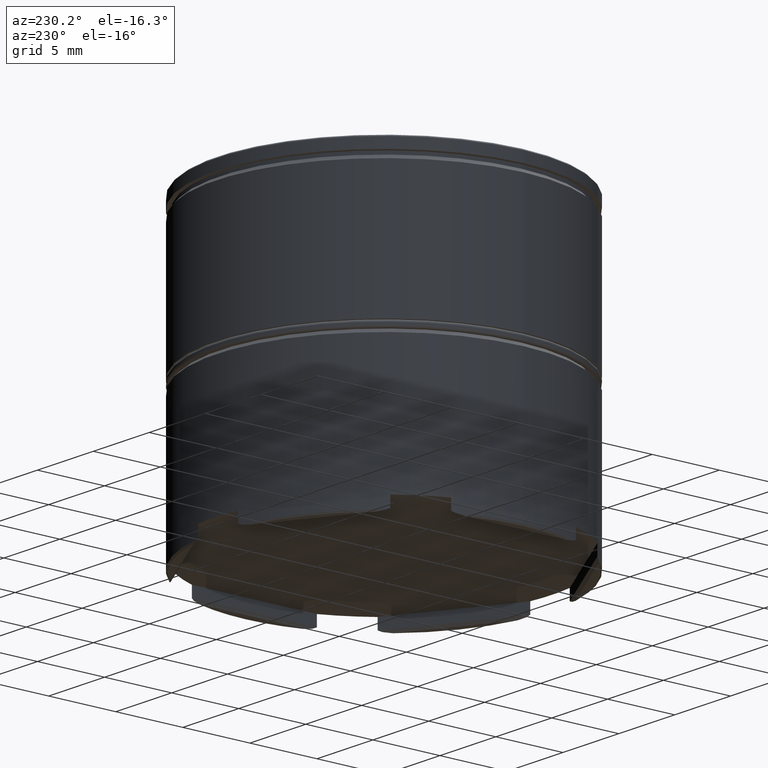
[diagram: clean part render]
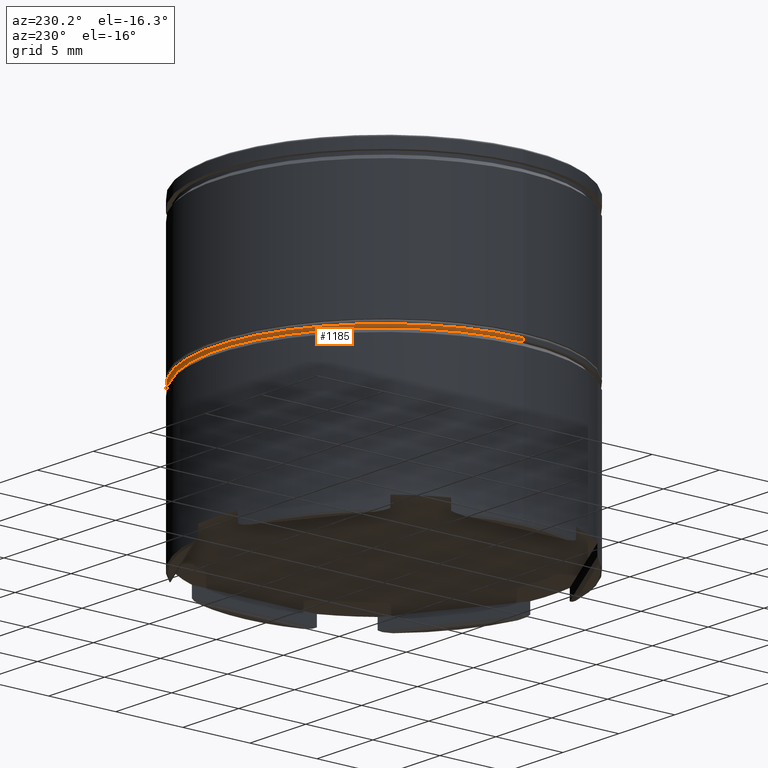
[diagram: same view with one face highlighted and labeled with its STEP entity id]
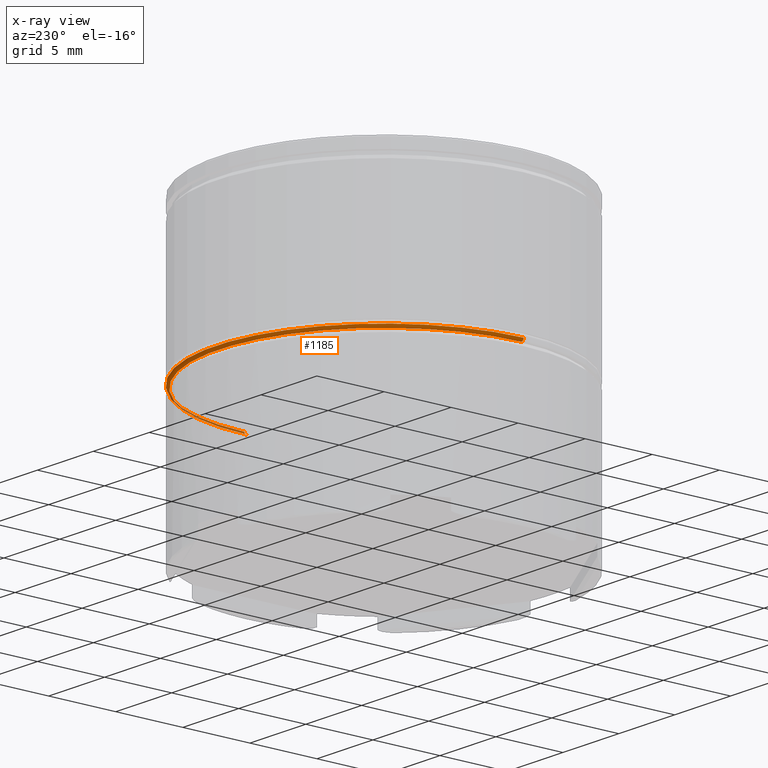
[diagram: x-ray of the same camera — body ghosted, the highlighted face saturated]
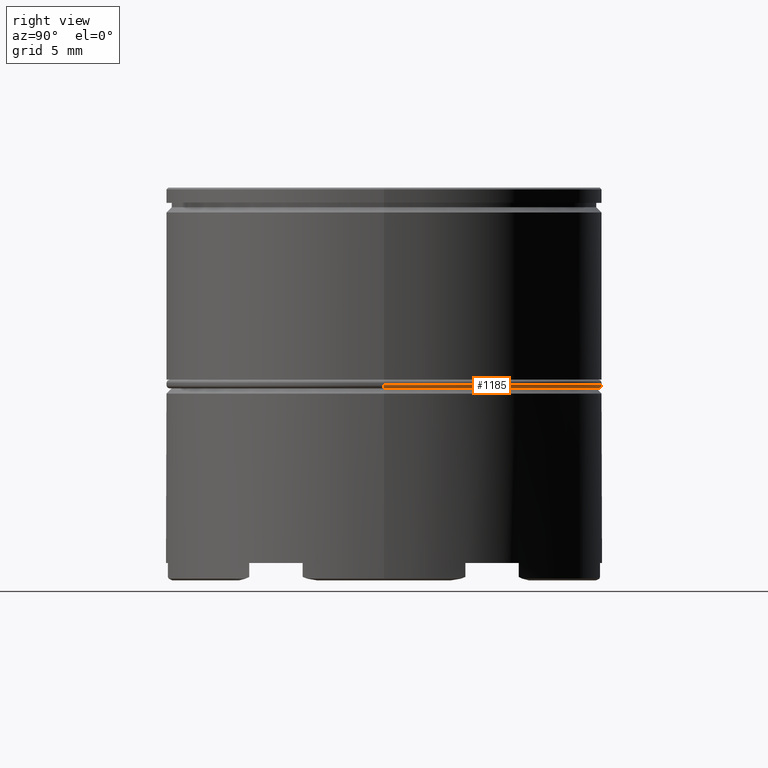
[diagram: same view with one face highlighted and labeled with its STEP entity id]
A machine part, auxiliary view. The second image highlights one B-rep face of the part: STEP entity #1185.
The next image is the same camera in x-ray: the body ghosted, the highlighted face saturated — about 8% of this face is hidden behind the body in this view.
A second angle (right view) of the same face is appended — the face is thin or edge-on in the first view.
In plain terms, the highlighted toroidal blend (fillet) surface has major radius 12.3 mm and minor (blend) radius 0.2 mm.
Its self-contained STEP definition (entity closure, byte-faithful):
#21 = EDGE_CURVE ( 'NONE', #110, #364, #291, .T. ) ;
#110 = VERTEX_POINT ( 'NONE', #936 ) ;
#126 = CARTESIAN_POINT ( 'NONE',  ( 12.30000000000000071, 0.000000000000000000, -11.29999999999999716 ) ) ;
#183 = CIRCLE ( 'NONE', #1316, 0.2000000000000005107 ) ;
#246 = CARTESIAN_POINT ( 'NONE',  ( 0.000000000000000000, 0.000000000000000000, -11.29999999999999716 ) ) ;
#256 = DIRECTION ( 'NONE',  ( 1.000000000000000000, 0.000000000000000000, 0.000000000000000000 ) ) ;
#259 = ORIENTED_EDGE ( 'NONE', *, *, #449, .F. ) ;
#266 = CARTESIAN_POINT ( 'NONE',  ( -12.30000000000000071, 1.518562030942717967E-15, -11.49999999999999822 ) ) ;
#291 = CIRCLE ( 'NONE', #1244, 0.2000000000000005107 ) ;
#364 = VERTEX_POINT ( 'NONE', #1143 ) ;
#395 = ORIENTED_EDGE ( 'NONE', *, *, #1195, .T. ) ;
#411 = TOROIDAL_SURFACE ( 'NONE', #756, 12.30000000000000071, 0.2000000000000000111 ) ;
#449 = EDGE_CURVE ( 'NONE', #777, #110, #652, .T. ) ;
#459 = ORIENTED_EDGE ( 'NONE', *, *, #21, .F. ) ;
#478 = VERTEX_POINT ( 'NONE', #1180 ) ;
#575 = AXIS2_PLACEMENT_3D ( 'NONE', #957, #1315, #918 ) ;
#652 = CIRCLE ( 'NONE', #575, 12.30000000000000071 ) ;
#669 = DIRECTION ( 'NONE',  ( 1.000000000000000000, 0.000000000000000000, 0.000000000000000000 ) ) ;
#756 = AXIS2_PLACEMENT_3D ( 'NONE', #246, #763, #669 ) ;
#763 = DIRECTION ( 'NONE',  ( 0.000000000000000000, 0.000000000000000000, 1.000000000000000000 ) ) ;
#777 = VERTEX_POINT ( 'NONE', #266 ) ;
#781 = CARTESIAN_POINT ( 'NONE',  ( -12.30000000000000071, 1.506315562951244413E-15, -11.29999999999999716 ) ) ;
#918 = DIRECTION ( 'NONE',  ( 1.000000000000000000, 0.000000000000000000, 0.000000000000000000 ) ) ;
#936 = CARTESIAN_POINT ( 'NONE',  ( 12.30000000000000071, 0.000000000000000000, -11.49999999999999822 ) ) ;
#957 = CARTESIAN_POINT ( 'NONE',  ( 0.000000000000000000, 0.000000000000000000, -11.49999999999999822 ) ) ;
#1004 = CARTESIAN_POINT ( 'NONE',  ( 0.000000000000000000, 0.000000000000000000, -11.29999999999999716 ) ) ;
#1015 = DIRECTION ( 'NONE',  ( 0.000000000000000000, -1.000000000000000000, 0.000000000000000000 ) ) ;
#1115 = CIRCLE ( 'NONE', #1144, 12.50000000000000000 ) ;
#1116 = EDGE_LOOP ( 'NONE', ( #259, #395, #1394, #459 ) ) ;
#1143 = CARTESIAN_POINT ( 'NONE',  ( 12.50000000000000000, 0.000000000000000000, -11.29999999999999716 ) ) ;
#1144 = AXIS2_PLACEMENT_3D ( 'NONE', #1004, #1629, #256 ) ;
#1145 = DIRECTION ( 'NONE',  ( -1.000000000000000000, 1.224646799147353207E-16, 0.000000000000000000 ) ) ;
#1152 = DIRECTION ( 'NONE',  ( 1.224646799147353207E-16, 1.000000000000000000, -0.000000000000000000 ) ) ;
#1180 = CARTESIAN_POINT ( 'NONE',  ( -12.50000000000000000, 1.530808498934191521E-15, -11.29999999999999716 ) ) ;
#1185 = ADVANCED_FACE ( 'NONE', ( #1375 ), #411, .T. ) ;
#1195 = EDGE_CURVE ( 'NONE', #777, #478, #183, .T. ) ;
#1244 = AXIS2_PLACEMENT_3D ( 'NONE', #126, #1015, #1515 ) ;
#1315 = DIRECTION ( 'NONE',  ( -0.000000000000000000, -0.000000000000000000, -1.000000000000000000 ) ) ;
#1316 = AXIS2_PLACEMENT_3D ( 'NONE', #781, #1152, #1145 ) ;
#1375 = FACE_OUTER_BOUND ( 'NONE', #1116, .T. ) ;
#1394 = ORIENTED_EDGE ( 'NONE', *, *, #1472, .F. ) ;
#1472 = EDGE_CURVE ( 'NONE', #364, #478, #1115, .T. ) ;
#1515 = DIRECTION ( 'NONE',  ( 0.000000000000000000, 0.000000000000000000, -1.000000000000000000 ) ) ;
#1629 = DIRECTION ( 'NONE',  ( 0.000000000000000000, 0.000000000000000000, 1.000000000000000000 ) ) ;